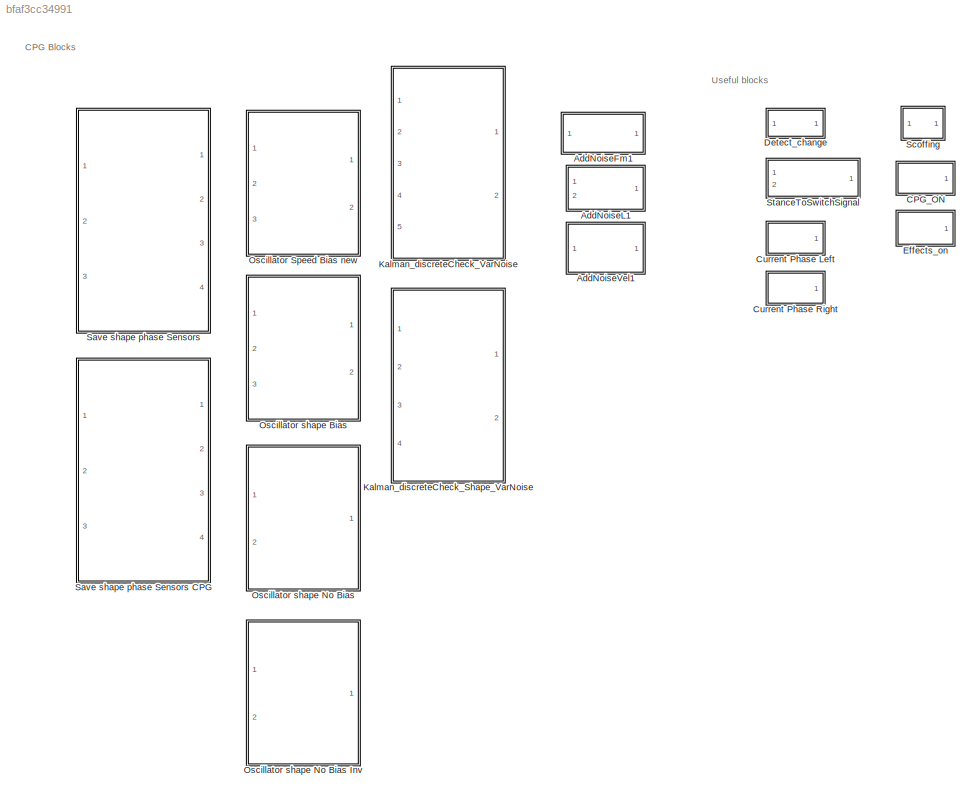
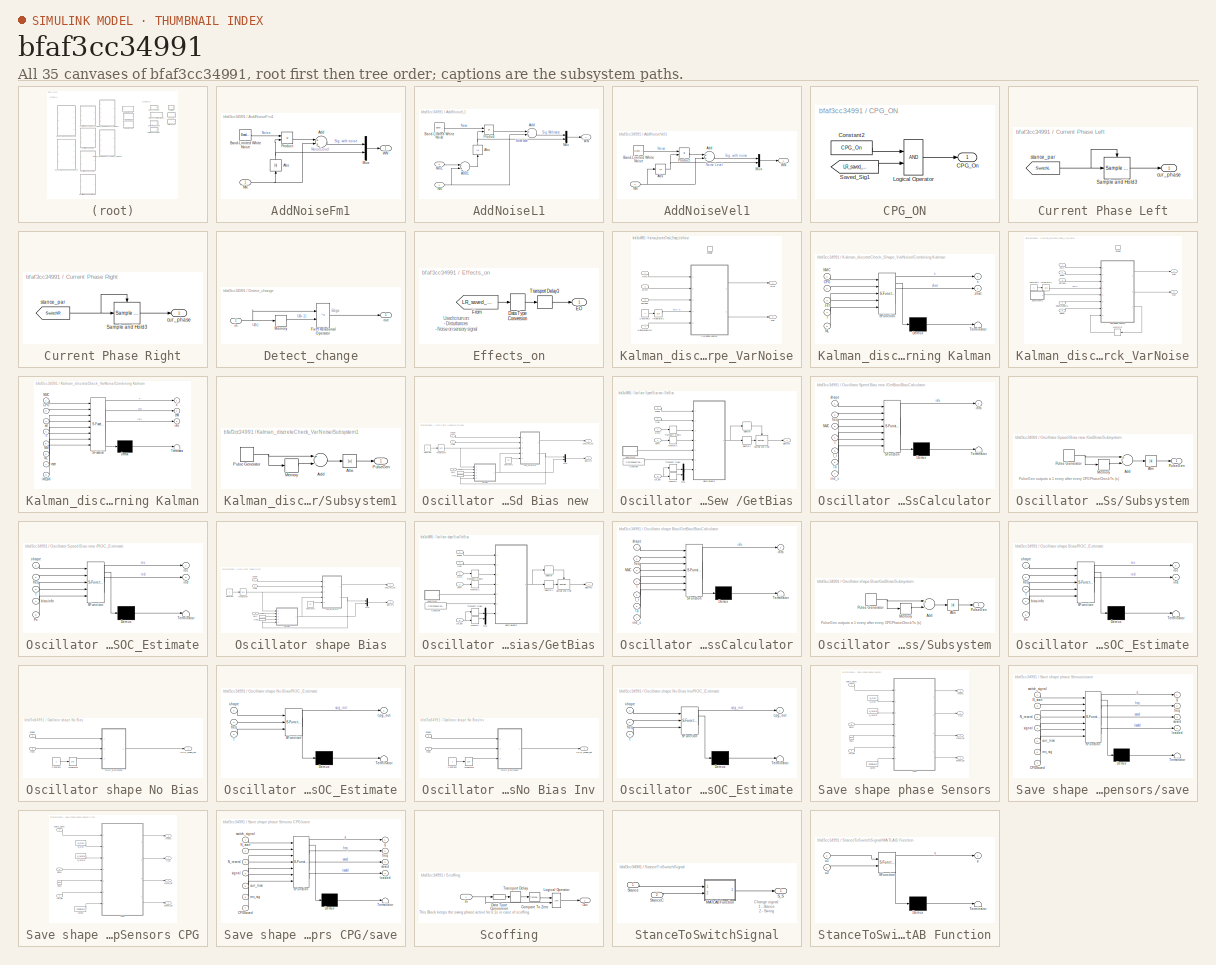
[diagram: thumbnail index - all 35 canvases of the model, root first then tree order]
MODEL slx_bfaf3cc34991
KIND library
CONFIG AbsTol = auto
CONFIG EnableMultiTasking = on
CONFIG FixedStep = auto
CONFIG MaxStep = auto
CONFIG MinStep = auto
CONFIG RelTol = 1e-3
CONFIG SampleTimeConstraint = Unconstrained
CONFIG Solver = VariableStepAuto
CONFIG SolverName = VariableStepAuto
CONFIG StartTime = 0.0
CONFIG StopTime = 10.0
BLOCK [SubSystem] AddNoiseFm1
  Ports = [1, 1]
  RequestExecContextInheritance = off
  Variant = off
BLOCK [Abs] AddNoiseFm1/Abs
  SaturateOnIntegerOverflow = off
BLOCK [Sum] AddNoiseFm1/Add
  InputSameDT = off
  OutDataTypeStr = Inherit: Inherit via internal rule
  Ports = [2, 1]
  SaturateOnIntegerOverflow = off
BLOCK [Reference] AddNoiseFm1/Band-Limited White Noise  REF=simulink/Sources/Band-Limited
White Noise
  Ports = [0, 1]
  SourceBlock = simulink/Sources/Band-Limited\nWhite Noise
  SourceType = Band-Limited White Noise.
BLOCK [Mux] AddNoiseFm1/Mux
  DisplayOption = bar
  Inputs = 2
  Ports = [2, 1]
BLOCK [Inport] AddNoiseFm1/NN
  IconDisplay = Port number
BLOCK [Product] AddNoiseFm1/Product
  InputSameDT = off
  OutDataTypeStr = Inherit: Inherit via internal rule
  Ports = [2, 1]
  RndMeth = Floor
  SaturateOnIntegerOverflow = off
BLOCK [Outport] AddNoiseFm1/WN 
  IconDisplay = Port number
BLOCK [SubSystem] AddNoiseL1
  Ports = [2, 1]
  RequestExecContextInheritance = off
  Variant = off
BLOCK [Abs] AddNoiseL1/Abs
  SaturateOnIntegerOverflow = off
BLOCK [Sum] AddNoiseL1/Add
  InputSameDT = off
  OutDataTypeStr = Inherit: Inherit via internal rule
  Ports = [2, 1]
  SaturateOnIntegerOverflow = off
BLOCK [Sum] AddNoiseL1/Add1
  InputSameDT = off
  Inputs = -+
  OutDataTypeStr = Inherit: Inherit via internal rule
  Ports = [2, 1]
  SaturateOnIntegerOverflow = off
BLOCK [Reference] AddNoiseL1/Band-Limited White Noise  REF=simulink/Sources/Band-Limited
White Noise
  Ports = [0, 1]
  SourceBlock = simulink/Sources/Band-Limited\nWhite Noise
  SourceType = Band-Limited White Noise.
BLOCK [Inport] AddNoiseL1/MinL
  IconDisplay = Port number
  Port = 2
BLOCK [Mux] AddNoiseL1/Mux
  DisplayOption = bar
  Inputs = 2
  Ports = [2, 1]
BLOCK [Inport] AddNoiseL1/NN
  IconDisplay = Port number
BLOCK [Product] AddNoiseL1/Product
  InputSameDT = off
  OutDataTypeStr = Inherit: Inherit via internal rule
  Ports = [2, 1]
  RndMeth = Floor
  SaturateOnIntegerOverflow = off
BLOCK [Outport] AddNoiseL1/WN 
  IconDisplay = Port number
BLOCK [SubSystem] AddNoiseVel1
  Ports = [1, 1]
  RequestExecContextInheritance = off
  Variant = off
BLOCK [Abs] AddNoiseVel1/Abs
  SaturateOnIntegerOverflow = off
BLOCK [Sum] AddNoiseVel1/Add
  InputSameDT = off
  OutDataTypeStr = Inherit: Inherit via internal rule
  Ports = [2, 1]
  SaturateOnIntegerOverflow = off
BLOCK [Reference] AddNoiseVel1/Band-Limited White Noise  REF=simulink/Sources/Band-Limited
White Noise
  Ports = [0, 1]
  SourceBlock = simulink/Sources/Band-Limited\nWhite Noise
  SourceType = Band-Limited White Noise.
BLOCK [Mux] AddNoiseVel1/Mux
  DisplayOption = bar
  Inputs = 2
  Ports = [2, 1]
BLOCK [Inport] AddNoiseVel1/NN
  IconDisplay = Port number
BLOCK [Product] AddNoiseVel1/Product
  InputSameDT = off
  OutDataTypeStr = Inherit: Inherit via internal rule
  Ports = [2, 1]
  RndMeth = Floor
  SaturateOnIntegerOverflow = off
BLOCK [Outport] AddNoiseVel1/WN 
  IconDisplay = Port number
BLOCK [SubSystem] CPG_ON
  Ports = [0, 1]
  RequestExecContextInheritance = off
  Variant = off
BLOCK [Outport] CPG_ON/CPG_On
  IconDisplay = Port number
BLOCK [Constant] CPG_ON/Constant2
  Value = CPG_On
BLOCK [Logic] CPG_ON/Logical Operator
  AllPortsSameDT = off
  OutDataTypeStr = boolean
  Ports = [2, 1]
BLOCK [From] CPG_ON/Saved_Sig1
  CloseFcn = tagdialog Close
  GotoTag = LR_saved_kept
  TagVisibility = global
BLOCK [SubSystem] Current Phase Left
  Ports = [0, 1]
  RequestExecContextInheritance = off
  Variant = off
BLOCK [Reference] Current Phase Left/Sample and Hold3  REF=dspsigops/Sample
and Hold
  Ports = [1, 1, 0, 1]
  SourceBlock = dspsigops/Sample\nand Hold
  SourceType = Sample and Hold
BLOCK [Outport] Current Phase Left/cur_phase
  IconDisplay = Port number
BLOCK [From] Current Phase Left/stance_par
  CloseFcn = tagdialog Close
  GotoTag = SwitchL
  TagVisibility = global
BLOCK [SubSystem] Current Phase Right
  Ports = [0, 1]
  RequestExecContextInheritance = off
  Variant = off
BLOCK [Reference] Current Phase Right/Sample and Hold3  REF=dspsigops/Sample
and Hold
  Ports = [1, 1, 0, 1]
  SourceBlock = dspsigops/Sample\nand Hold
  SourceType = Sample and Hold
BLOCK [Outport] Current Phase Right/cur_phase
  IconDisplay = Port number
BLOCK [From] Current Phase Right/stance_par
  CloseFcn = tagdialog Close
  GotoTag = SwitchR
  TagVisibility = global
BLOCK [SubSystem] Detect_change
  Ports = [1, 1]
  RequestExecContextInheritance = off
  Variant = off
BLOCK [RelationalOperator] Detect_change/FixPt Relational Operator
  InputSameDT = off
  Operator = ~=
  OutDataTypeStr = fixdt(0, 8)
  Ports = [2, 1]
  ZeroCross = off
BLOCK [Memory] Detect_change/Memory
BLOCK [Inport] Detect_change/in
  IconDisplay = Port number
BLOCK [Outport] Detect_change/out 
  IconDisplay = Port number
BLOCK [SubSystem] Effects_on
  Ports = [0, 1]
  RequestExecContextInheritance = off
  Variant = off
BLOCK [DataTypeConversion] Effects_on/Data Type Conversion
  RndMeth = Floor
  SaturateOnIntegerOverflow = off
BLOCK [Outport] Effects_on/EO
  IconDisplay = Port number
BLOCK [From] Effects_on/From
  GotoTag = LR_saved_kept
  TagVisibility = global
BLOCK [TransportDelay] Effects_on/Transport Delay3
  DelayTime = 0.1
  Ports = [1, 1]
BLOCK [SubSystem] Kalman_discreteCheck_Shape_VarNoise
  MinAlgLoopOccurrences = on
  Ports = [4, 2, 1]
  RequestExecContextInheritance = off
  Variant = off
BLOCK [SubSystem] Kalman_discreteCheck_Shape_VarNoise/Combining Kalman
  ErrorFcn = Stateflow.Translate.translate
  MinAlgLoopOccurrences = on
  PermitHierarchicalResolution = ExplicitOnly
  Ports = [5, 2]
  RequestExecContextInheritance = off
  SFBlockType = MATLAB Function
  SystemSampleTime = 1E-3
  Variant = off
BLOCK [Demux] Kalman_discreteCheck_Shape_VarNoise/Combining Kalman/ Demux 
  Outputs = 1
  Ports = [1, 1]
BLOCK [S-Function] Kalman_discreteCheck_Shape_VarNoise/Combining Kalman/ SFunction 
  EnableBusSupport = off
  FunctionName = sf_sfun
  PortCounts = [5 3]
  Ports = [5, 3]
  SFcnIsStateOwnerBlock = off
  SFunctionDeploymentMode = off
  Tag = Stateflow S-Function NMCCPG_Library 5
BLOCK [Terminator] Kalman_discreteCheck_Shape_VarNoise/Combining Kalman/ Terminator 
BLOCK [Inport] Kalman_discreteCheck_Shape_VarNoise/Combining Kalman/CPG
  IconDisplay = Port number
  Port = 2
BLOCK [Inport] Kalman_discreteCheck_Shape_VarNoise/Combining Kalman/NL
  IconDisplay = Port number
  Port = 5
BLOCK [Inport] Kalman_discreteCheck_Shape_VarNoise/Combining Kalman/NMC
  IconDisplay = Port number
BLOCK [Inport] Kalman_discreteCheck_Shape_VarNoise/Combining Kalman/set
  IconDisplay = Port number
  Port = 3
BLOCK [Inport] Kalman_discreteCheck_Shape_VarNoise/Combining Kalman/t
  IconDisplay = Port number
  Port = 4
BLOCK [Outport] Kalman_discreteCheck_Shape_VarNoise/Combining Kalman/x
  IconDisplay = Port number
BLOCK [Outport] Kalman_discreteCheck_Shape_VarNoise/Combining Kalman/zhat
  IconDisplay = Port number
  Port = 2
BLOCK [Constant] Kalman_discreteCheck_Shape_VarNoise/Constant2
BLOCK [EnablePort] Kalman_discreteCheck_Shape_VarNoise/Enable
  Ports = []
  StatesWhenEnabling = reset
BLOCK [Integrator] Kalman_discreteCheck_Shape_VarNoise/Integrator1
  Ports = [1, 1]
BLOCK [Inport] Kalman_discreteCheck_Shape_VarNoise/NMC
  IconDisplay = Port number
BLOCK [Inport] Kalman_discreteCheck_Shape_VarNoise/NoiseLevelNMC
  IconDisplay = Port number
  Port = 4
BLOCK [Inport] Kalman_discreteCheck_Shape_VarNoise/Settings
  IconDisplay = Port number
  Port = 3
BLOCK [Inport] Kalman_discreteCheck_Shape_VarNoise/dCPG
  IconDisplay = Port number
  Port = 2
BLOCK [Outport] Kalman_discreteCheck_Shape_VarNoise/xHat
  IconDisplay = Port number
BLOCK [Outport] Kalman_discreteCheck_Shape_VarNoise/zhat
  IconDisplay = Port number
  Port = 2
BLOCK [SubSystem] Kalman_discreteCheck_VarNoise
  MinAlgLoopOccurrences = on
  Ports = [5, 2, 1]
  RequestExecContextInheritance = off
  Variant = off
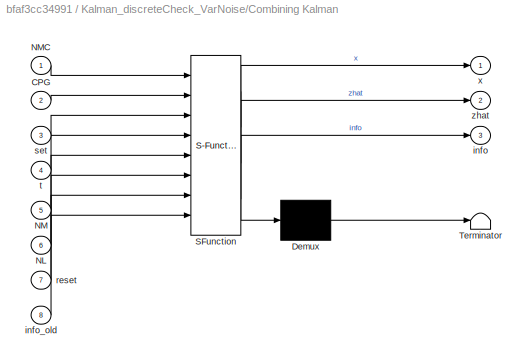
BLOCK [SubSystem] Kalman_discreteCheck_VarNoise/Combining Kalman
  ErrorFcn = Stateflow.Translate.translate
  MinAlgLoopOccurrences = on
  PermitHierarchicalResolution = ExplicitOnly
  Ports = [8, 3]
  RequestExecContextInheritance = off
  SFBlockType = MATLAB Function
  SystemSampleTime = 1E-3
  TreatAsAtomicUnit = on
  Variant = off
BLOCK [Demux] Kalman_discreteCheck_VarNoise/Combining Kalman/ Demux 
  Outputs = 1
  Ports = [1, 1]
BLOCK [S-Function] Kalman_discreteCheck_VarNoise/Combining Kalman/ SFunction 
  EnableBusSupport = off
  FunctionName = sf_sfun
  PortCounts = [8 4]
  Ports = [8, 4]
  SFcnIsStateOwnerBlock = off
  SFunctionDeploymentMode = off
  Tag = Stateflow S-Function NMCCPG_Library 21
BLOCK [Terminator] Kalman_discreteCheck_VarNoise/Combining Kalman/ Terminator 
BLOCK [Inport] Kalman_discreteCheck_VarNoise/Combining Kalman/CPG
  IconDisplay = Port number
  Port = 2
BLOCK [Inport] Kalman_discreteCheck_VarNoise/Combining Kalman/NL
  IconDisplay = Port number
  Port = 6
BLOCK [Inport] Kalman_discreteCheck_VarNoise/Combining Kalman/NM
  IconDisplay = Port number
  Port = 5
BLOCK [Inport] Kalman_discreteCheck_VarNoise/Combining Kalman/NMC
  IconDisplay = Port number
BLOCK [Outport] Kalman_discreteCheck_VarNoise/Combining Kalman/info
  IconDisplay = Port number
  Port = 3
BLOCK [Inport] Kalman_discreteCheck_VarNoise/Combining Kalman/info_old
  IconDisplay = Port number
  Port = 8
BLOCK [Inport] Kalman_discreteCheck_VarNoise/Combining Kalman/reset
  IconDisplay = Port number
  Port = 7
BLOCK [Inport] Kalman_discreteCheck_VarNoise/Combining Kalman/set
  IconDisplay = Port number
  Port = 3
BLOCK [Inport] Kalman_discreteCheck_VarNoise/Combining Kalman/t
  IconDisplay = Port number
  Port = 4
BLOCK [Outport] Kalman_discreteCheck_VarNoise/Combining Kalman/x
  IconDisplay = Port number
BLOCK [Outport] Kalman_discreteCheck_VarNoise/Combining Kalman/zhat
  IconDisplay = Port number
  Port = 2
BLOCK [Constant] Kalman_discreteCheck_VarNoise/Constant2
BLOCK [EnablePort] Kalman_discreteCheck_VarNoise/Enable
  Ports = []
  StatesWhenEnabling = reset
BLOCK [Integrator] Kalman_discreteCheck_VarNoise/Integrator1
  Ports = [1, 1]
BLOCK [Memory] Kalman_discreteCheck_VarNoise/Memory5
  X0 = zeros(59,1)
BLOCK [Inport] Kalman_discreteCheck_VarNoise/NMC
  IconDisplay = Port number
BLOCK [Inport] Kalman_discreteCheck_VarNoise/NoiseLevelNMC
  IconDisplay = Port number
  Port = 4
BLOCK [Inport] Kalman_discreteCheck_VarNoise/Reset
  IconDisplay = Port number
  Port = 5
BLOCK [Inport] Kalman_discreteCheck_VarNoise/Settings
  IconDisplay = Port number
  Port = 3
BLOCK [SubSystem] Kalman_discreteCheck_VarNoise/Subsystem1
  Ports = [0, 1]
  RequestExecContextInheritance = off
  Variant = off
BLOCK [Abs] Kalman_discreteCheck_VarNoise/Subsystem1/Abs
  SaturateOnIntegerOverflow = off
BLOCK [Sum] Kalman_discreteCheck_VarNoise/Subsystem1/Add
  InputSameDT = off
  Inputs = +-
  OutDataTypeStr = Inherit: Inherit via internal rule
  Ports = [2, 1]
  SaturateOnIntegerOverflow = off
BLOCK [Memory] Kalman_discreteCheck_VarNoise/Subsystem1/Memory
BLOCK [DiscretePulseGenerator] Kalman_discreteCheck_VarNoise/Subsystem1/Pulse Generator
  Period = (1/NoiseFs)*2
  Ports = [0, 1]
  PulseType = Time based
  PulseWidth = 50
  SampleTime = -1
BLOCK [Outport] Kalman_discreteCheck_VarNoise/Subsystem1/PulseGen
  IconDisplay = Port number
BLOCK [Inport] Kalman_discreteCheck_VarNoise/dCPG
  IconDisplay = Port number
  Port = 2
BLOCK [Outport] Kalman_discreteCheck_VarNoise/xHat
  IconDisplay = Port number
BLOCK [Outport] Kalman_discreteCheck_VarNoise/zhat
  IconDisplay = Port number
  Port = 2
BLOCK [SubSystem] Oscillator Speed Bias new 
  Ports = [3, 2]
  RequestExecContextInheritance = off
  Variant = off
BLOCK [Outport] Oscillator Speed Bias new /BiasInfo
  IconDisplay = Port number
  Port = 2
  SignalType = real
  VarSizeSig = No
BLOCK [Outport] Oscillator Speed Bias new /CPG_roc_est
  IconDisplay = Port number
  SignalType = real
  VarSizeSig = No
BLOCK [Constant] Oscillator Speed Bias new /Constant
BLOCK [Constant] Oscillator Speed Bias new /Constant1
  Value = Pc
BLOCK [SubSystem] Oscillator Speed Bias new /GetBias
  Ports = [5, 1]
  RequestExecContextInheritance = off
  Variant = off
BLOCK [SubSystem] Oscillator Speed Bias new /GetBias/BiasCalculator
  ErrorFcn = Stateflow.Translate.translate
  PermitHierarchicalResolution = ExplicitOnly
  Ports = [7, 1]
  RequestExecContextInheritance = off
  SFBlockType = MATLAB Function
  TreatAsAtomicUnit = on
  Variant = off
BLOCK [Demux] Oscillator Speed Bias new /GetBias/BiasCalculator/ Demux 
  Outputs = 1
  Ports = [1, 1]
BLOCK [S-Function] Oscillator Speed Bias new /GetBias/BiasCalculator/ SFunction 
  EnableBusSupport = off
  FunctionName = sf_sfun
  PortCounts = [7 2]
  Ports = [7, 2]
  SFcnIsStateOwnerBlock = off
  SFunctionDeploymentMode = off
  Tag = Stateflow S-Function NMCCPG_Library 1
BLOCK [Terminator] Oscillator Speed Bias new /GetBias/BiasCalculator/ Terminator 
BLOCK [Inport] Oscillator Speed Bias new /GetBias/BiasCalculator/NMC
  IconDisplay = Port number
  Port = 3
BLOCK [Inport] Oscillator Speed Bias new /GetBias/BiasCalculator/Ts
  IconDisplay = Port number
  Port = 6
BLOCK [Inport] Oscillator Speed Bias new /GetBias/BiasCalculator/freq
  IconDisplay = Port number
  Port = 2
BLOCK [Inport] Oscillator Speed Bias new /GetBias/BiasCalculator/ind_c
  IconDisplay = Port number
  Port = 7
BLOCK [Outport] Oscillator Speed Bias new /GetBias/BiasCalculator/info
  IconDisplay = Port number
BLOCK [Inport] Oscillator Speed Bias new /GetBias/BiasCalculator/shape
  IconDisplay = Port number
BLOCK [Inport] Oscillator Speed Bias new /GetBias/BiasCalculator/t
  IconDisplay = Port number
  Port = 4
BLOCK [Inport] Oscillator Speed Bias new /GetBias/BiasCalculator/t_r
  IconDisplay = Port number
  Port = 5
BLOCK [Outport] Oscillator Speed Bias new /GetBias/BiasInfo
  IconDisplay = Port number
BLOCK [Constant] Oscillator Speed Bias new /GetBias/Constant
  Value = CPGPhaseCheckTs
BLOCK [Memory] Oscillator Speed Bias new /GetBias/Memory
BLOCK [Memory] Oscillator Speed Bias new /GetBias/Memory1
BLOCK [Mux] Oscillator Speed Bias new /GetBias/Mux
  DisplayOption = bar
  Inputs = 2
  Ports = [2, 1]
BLOCK [Inport] Oscillator Speed Bias new /GetBias/NMC
  IconDisplay = Port number
  Port = 2
BLOCK [Reference] Oscillator Speed Bias new /GetBias/Sample and Hold  REF=dspsigops/Sample
and Hold
  Ports = [1, 1, 0, 1]
  SourceBlock = dspsigops/Sample\nand Hold
  SourceType = Sample and Hold
BLOCK [Selector] Oscillator Speed Bias new /GetBias/Selector
  IndexOptions = Index vector (dialog)
  Indices = [1]
  InputPortWidth = 4
  OutputSizes = 1
  Ports = [1, 1]
BLOCK [Selector] Oscillator Speed Bias new /GetBias/Selector1
  IndexOptions = Index vector (dialog)
  Indices = [2:4]
  InputPortWidth = 4
  OutputSizes = 1
  Ports = [1, 1]
BLOCK [SubSystem] Oscillator Speed Bias new /GetBias/Subsystem
  Ports = [0, 1]
  RequestExecContextInheritance = off
  Variant = off
BLOCK [Abs] Oscillator Speed Bias new /GetBias/Subsystem/Abs
  SaturateOnIntegerOverflow = off
BLOCK [Sum] Oscillator Speed Bias new /GetBias/Subsystem/Add
  InputSameDT = off
  Inputs = +-
  OutDataTypeStr = Inherit: Inherit via internal rule
  Ports = [2, 1]
  SaturateOnIntegerOverflow = off
BLOCK [Memory] Oscillator Speed Bias new /GetBias/Subsystem/Memory
BLOCK [DiscretePulseGenerator] Oscillator Speed Bias new /GetBias/Subsystem/Pulse Generator
  Period = CPGPhaseCheckTs*2
  Ports = [0, 1]
  PulseType = Time based
  PulseWidth = 50
  SampleTime = -1
BLOCK [Outport] Oscillator Speed Bias new /GetBias/Subsystem/PulseGen
  IconDisplay = Port number
BLOCK [TransportDelay] Oscillator Speed Bias new /GetBias/Transport Delay
  DelayTime = CPGPhaseCheckTs*0.5
  Ports = [1, 1]
BLOCK [TransportDelay] Oscillator Speed Bias new /GetBias/Transport Delay1
  DelayTime = CPGPhaseCheckTs*0.5
  InitialOutput = zeros(19,1)
  Ports = [1, 1]
BLOCK [Inport] Oscillator Speed Bias new /GetBias/cur_ind
  IconDisplay = Port number
  Port = 5
BLOCK [Inport] Oscillator Speed Bias new /GetBias/freq
  IconDisplay = Port number
  Port = 4
BLOCK [Inport] Oscillator Speed Bias new /GetBias/shape
  IconDisplay = Port number
  Port = 3
BLOCK [Inport] Oscillator Speed Bias new /GetBias/time
  IconDisplay = Port number
BLOCK [Integrator] Oscillator Speed Bias new /Integrator
  Ports = [1, 1]
BLOCK [Mux] Oscillator Speed Bias new /Mux
  DisplayOption = bar
  Inputs = 2
  Ports = [2, 1]
BLOCK [Inport] Oscillator Speed Bias new /NMC
  IconDisplay = Port number
  Port = 3
BLOCK [SubSystem] Oscillator Speed Bias new /ROC_Estimate
  ErrorFcn = Stateflow.Translate.translate
  PermitHierarchicalResolution = ExplicitOnly
  Ports = [5, 2]
  RequestExecContextInheritance = off
  SFBlockType = MATLAB Function
  TreatAsAtomicUnit = on
  Variant = off
BLOCK [Demux] Oscillator Speed Bias new /ROC_Estimate/ Demux 
  Outputs = 1
  Ports = [1, 1]
BLOCK [S-Function] Oscillator Speed Bias new /ROC_Estimate/ SFunction 
  EnableBusSupport = off
  FunctionName = sf_sfun
  PortCounts = [5 3]
  Ports = [5, 3]
  SFcnIsStateOwnerBlock = off
  SFunctionDeploymentMode = off
  Tag = Stateflow S-Function NMCCPG_Library 2
BLOCK [Terminator] Oscillator Speed Bias new /ROC_Estimate/ Terminator 
BLOCK [Inport] Oscillator Speed Bias new /ROC_Estimate/Pc
  IconDisplay = Port number
  Port = 5
BLOCK [Inport] Oscillator Speed Bias new /ROC_Estimate/biasinfo
  IconDisplay = Port number
  Port = 4
BLOCK [Inport] Oscillator Speed Bias new /ROC_Estimate/freq
  IconDisplay = Port number
  Port = 2
BLOCK [Outport] Oscillator Speed Bias new /ROC_Estimate/ind
  IconDisplay = Port number
  Port = 2
BLOCK [Outport] Oscillator Speed Bias new /ROC_Estimate/roc
  IconDisplay = Port number
BLOCK [Inport] Oscillator Speed Bias new /ROC_Estimate/shape
  IconDisplay = Port number
BLOCK [Inport] Oscillator Speed Bias new /ROC_Estimate/t
  IconDisplay = Port number
  Port = 3
BLOCK [Inport] Oscillator Speed Bias new /freq
  IconDisplay = Port number
  Port = 2
BLOCK [InportShadow] Oscillator Speed Bias new /freq1
  IconDisplay = Port number
  Port = 2
BLOCK [Inport] Oscillator Speed Bias new /shape
  IconDisplay = Port number
BLOCK [InportShadow] Oscillator Speed Bias new /shape1
  IconDisplay = Port number
BLOCK [SubSystem] Oscillator shape Bias
  Ports = [3, 2]
  RequestExecContextInheritance = off
  Variant = off
BLOCK [Outport] Oscillator shape Bias/BiasInfo
  IconDisplay = Port number
  Port = 2
  SignalType = real
  VarSizeSig = No
BLOCK [Outport] Oscillator shape Bias/CPG_roc_est
  IconDisplay = Port number
  SignalType = real
  VarSizeSig = No
BLOCK [Constant] Oscillator shape Bias/Constant
BLOCK [Constant] Oscillator shape Bias/Constant1
  Value = Pc
BLOCK [SubSystem] Oscillator shape Bias/GetBias
  Ports = [5, 1]
  RequestExecContextInheritance = off
  Variant = off
BLOCK [SubSystem] Oscillator shape Bias/GetBias/BiasCalculator
  ErrorFcn = Stateflow.Translate.translate
  PermitHierarchicalResolution = ExplicitOnly
  Ports = [7, 1]
  RequestExecContextInheritance = off
  SFBlockType = MATLAB Function
  TreatAsAtomicUnit = on
  Variant = off
BLOCK [Demux] Oscillator shape Bias/GetBias/BiasCalculator/ Demux 
  Outputs = 1
  Ports = [1, 1]
BLOCK [S-Function] Oscillator shape Bias/GetBias/BiasCalculator/ SFunction 
  EnableBusSupport = off
  FunctionName = sf_sfun
  PortCounts = [7 2]
  Ports = [7, 2]
  SFcnIsStateOwnerBlock = off
  SFunctionDeploymentMode = off
  Tag = Stateflow S-Function NMCCPG_Library 3
BLOCK [Terminator] Oscillator shape Bias/GetBias/BiasCalculator/ Terminator 
BLOCK [Inport] Oscillator shape Bias/GetBias/BiasCalculator/NMC
  IconDisplay = Port number
  Port = 3
BLOCK [Inport] Oscillator shape Bias/GetBias/BiasCalculator/Ts
  IconDisplay = Port number
  Port = 6
BLOCK [Inport] Oscillator shape Bias/GetBias/BiasCalculator/freq
  IconDisplay = Port number
  Port = 2
BLOCK [Inport] Oscillator shape Bias/GetBias/BiasCalculator/ind_c
  IconDisplay = Port number
  Port = 7
BLOCK [Outport] Oscillator shape Bias/GetBias/BiasCalculator/info
  IconDisplay = Port number
BLOCK [Inport] Oscillator shape Bias/GetBias/BiasCalculator/shape
  IconDisplay = Port number
BLOCK [Inport] Oscillator shape Bias/GetBias/BiasCalculator/t
  IconDisplay = Port number
  Port = 4
BLOCK [Inport] Oscillator shape Bias/GetBias/BiasCalculator/t_r
  IconDisplay = Port number
  Port = 5
BLOCK [Outport] Oscillator shape Bias/GetBias/BiasInfo
  IconDisplay = Port number
BLOCK [Constant] Oscillator shape Bias/GetBias/Constant
  Value = CPGPhaseCheckTs
BLOCK [Memory] Oscillator shape Bias/GetBias/Memory
BLOCK [Memory] Oscillator shape Bias/GetBias/Memory1
BLOCK [Mux] Oscillator shape Bias/GetBias/Mux
  DisplayOption = bar
  Inputs = 2
  Ports = [2, 1]
BLOCK [Inport] Oscillator shape Bias/GetBias/NMC
  IconDisplay = Port number
  Port = 2
BLOCK [Reference] Oscillator shape Bias/GetBias/Sample and Hold  REF=dspsigops/Sample
and Hold
  Ports = [1, 1, 0, 1]
  SourceBlock = dspsigops/Sample\nand Hold
  SourceType = Sample and Hold
BLOCK [Selector] Oscillator shape Bias/GetBias/Selector
  IndexOptions = Index vector (dialog)
  Indices = [1]
  InputPortWidth = 4
  OutputSizes = 1
  Ports = [1, 1]
BLOCK [Selector] Oscillator shape Bias/GetBias/Selector1
  IndexOptions = Index vector (dialog)
  Indices = [2:4]
  InputPortWidth = 4
  OutputSizes = 1
  Ports = [1, 1]
BLOCK [SubSystem] Oscillator shape Bias/GetBias/Subsystem
  Ports = [0, 1]
  RequestExecContextInheritance = off
  Variant = off
BLOCK [Abs] Oscillator shape Bias/GetBias/Subsystem/Abs
  SaturateOnIntegerOverflow = off
BLOCK [Sum] Oscillator shape Bias/GetBias/Subsystem/Add
  InputSameDT = off
  Inputs = +-
  OutDataTypeStr = Inherit: Inherit via internal rule
  Ports = [2, 1]
  SaturateOnIntegerOverflow = off
BLOCK [Memory] Oscillator shape Bias/GetBias/Subsystem/Memory
BLOCK [DiscretePulseGenerator] Oscillator shape Bias/GetBias/Subsystem/Pulse Generator
  Period = CPGPhaseCheckTs*2
  Ports = [0, 1]
  PulseType = Time based
  PulseWidth = 50
  SampleTime = -1
BLOCK [Outport] Oscillator shape Bias/GetBias/Subsystem/PulseGen
  IconDisplay = Port number
BLOCK [TransportDelay] Oscillator shape Bias/GetBias/Transport Delay
  DelayTime = CPGPhaseCheckTs*0.5
  Ports = [1, 1]
BLOCK [TransportDelay] Oscillator shape Bias/GetBias/Transport Delay1
  DelayTime = CPGPhaseCheckTs*0.5
  InitialOutput = zeros(19,1)
  Ports = [1, 1]
BLOCK [Inport] Oscillator shape Bias/GetBias/cur_ind
  IconDisplay = Port number
  Port = 5
BLOCK [Inport] Oscillator shape Bias/GetBias/freq
  IconDisplay = Port number
  Port = 4
BLOCK [Inport] Oscillator shape Bias/GetBias/shape
  IconDisplay = Port number
  Port = 3
BLOCK [Inport] Oscillator shape Bias/GetBias/time
  IconDisplay = Port number
BLOCK [Integrator] Oscillator shape Bias/Integrator
  Ports = [1, 1]
BLOCK [Mux] Oscillator shape Bias/Mux
  DisplayOption = bar
  Inputs = 2
  Ports = [2, 1]
BLOCK [Inport] Oscillator shape Bias/NMC
  IconDisplay = Port number
  Port = 3
BLOCK [SubSystem] Oscillator shape Bias/ROC_Estimate
  ErrorFcn = Stateflow.Translate.translate
  PermitHierarchicalResolution = ExplicitOnly
  Ports = [5, 2]
  RequestExecContextInheritance = off
  SFBlockType = MATLAB Function
  TreatAsAtomicUnit = on
  Variant = off
BLOCK [Demux] Oscillator shape Bias/ROC_Estimate/ Demux 
  Outputs = 1
  Ports = [1, 1]
BLOCK [S-Function] Oscillator shape Bias/ROC_Estimate/ SFunction 
  EnableBusSupport = off
  FunctionName = sf_sfun
  PortCounts = [5 3]
  Ports = [5, 3]
  SFcnIsStateOwnerBlock = off
  SFunctionDeploymentMode = off
  Tag = Stateflow S-Function NMCCPG_Library 4
BLOCK [Terminator] Oscillator shape Bias/ROC_Estimate/ Terminator 
BLOCK [Inport] Oscillator shape Bias/ROC_Estimate/Pc
  IconDisplay = Port number
  Port = 5
BLOCK [Inport] Oscillator shape Bias/ROC_Estimate/biasinfo
  IconDisplay = Port number
  Port = 4
BLOCK [Inport] Oscillator shape Bias/ROC_Estimate/freq
  IconDisplay = Port number
  Port = 2
BLOCK [Outport] Oscillator shape Bias/ROC_Estimate/ind
  IconDisplay = Port number
  Port = 2
BLOCK [Outport] Oscillator shape Bias/ROC_Estimate/roc
  IconDisplay = Port number
BLOCK [Inport] Oscillator shape Bias/ROC_Estimate/shape
  IconDisplay = Port number
BLOCK [Inport] Oscillator shape Bias/ROC_Estimate/t
  IconDisplay = Port number
  Port = 3
BLOCK [Inport] Oscillator shape Bias/freq
  IconDisplay = Port number
  Port = 2
BLOCK [InportShadow] Oscillator shape Bias/freq1
  IconDisplay = Port number
  Port = 2
BLOCK [Inport] Oscillator shape Bias/shape
  IconDisplay = Port number
BLOCK [InportShadow] Oscillator shape Bias/shape1
  IconDisplay = Port number
BLOCK [SubSystem] Oscillator shape No Bias
  Ports = [2, 1]
  RequestExecContextInheritance = off
  Variant = off
BLOCK [SubSystem] Oscillator shape No Bias Inv
  Ports = [2, 1]
  RequestExecContextInheritance = off
  Variant = off
BLOCK [Outport] Oscillator shape No Bias Inv/CPG_shape_est
  IconDisplay = Port number
  SignalType = real
  VarSizeSig = No
BLOCK [Constant] Oscillator shape No Bias Inv/Constant
BLOCK [Integrator] Oscillator shape No Bias Inv/Integrator
  Ports = [1, 1]
BLOCK [SubSystem] Oscillator shape No Bias Inv/ROC_Estimate
  ErrorFcn = Stateflow.Translate.translate
  MinAlgLoopOccurrences = on
  PermitHierarchicalResolution = ExplicitOnly
  Ports = [3, 1]
  RequestExecContextInheritance = off
  SFBlockType = MATLAB Function
  TreatAsAtomicUnit = on
  TreatAsGroupedWhenPropagatingVariantConditions = off
  Variant = off
BLOCK [Demux] Oscillator shape No Bias Inv/ROC_Estimate/ Demux 
  Outputs = 1
  Ports = [1, 1]
BLOCK [S-Function] Oscillator shape No Bias Inv/ROC_Estimate/ SFunction 
  EnableBusSupport = off
  FunctionName = sf_sfun
  PortCounts = [3 2]
  Ports = [3, 2]
  SFcnIsStateOwnerBlock = off
  SFunctionDeploymentMode = off
  Tag = Stateflow S-Function NMCCPG_Library 6
BLOCK [Terminator] Oscillator shape No Bias Inv/ROC_Estimate/ Terminator 
BLOCK [Outport] Oscillator shape No Bias Inv/ROC_Estimate/cpg_out
  IconDisplay = Port number
BLOCK [Inport] Oscillator shape No Bias Inv/ROC_Estimate/freq
  IconDisplay = Port number
  Port = 2
BLOCK [Inport] Oscillator shape No Bias Inv/ROC_Estimate/shape
  IconDisplay = Port number
BLOCK [Inport] Oscillator shape No Bias Inv/ROC_Estimate/t
  IconDisplay = Port number
  Port = 3
BLOCK [Inport] Oscillator shape No Bias Inv/freq
  IconDisplay = Port number
  Port = 2
BLOCK [Inport] Oscillator shape No Bias Inv/shape
  IconDisplay = Port number
BLOCK [Outport] Oscillator shape No Bias/CPG_shape_est
  IconDisplay = Port number
  SignalType = real
  VarSizeSig = No
BLOCK [Constant] Oscillator shape No Bias/Constant
BLOCK [Integrator] Oscillator shape No Bias/Integrator
  Ports = [1, 1]
BLOCK [SubSystem] Oscillator shape No Bias/ROC_Estimate
  ErrorFcn = Stateflow.Translate.translate
  MinAlgLoopOccurrences = on
  PermitHierarchicalResolution = ExplicitOnly
  Ports = [3, 1]
  RequestExecContextInheritance = off
  SFBlockType = MATLAB Function
  SystemSampleTime = 1e-2
  TreatAsAtomicUnit = on
  TreatAsGroupedWhenPropagatingVariantConditions = off
  Variant = off
BLOCK [Demux] Oscillator shape No Bias/ROC_Estimate/ Demux 
  Outputs = 1
  Ports = [1, 1]
BLOCK [S-Function] Oscillator shape No Bias/ROC_Estimate/ SFunction 
  EnableBusSupport = off
  FunctionName = sf_sfun
  PortCounts = [3 2]
  Ports = [3, 2]
  SFcnIsStateOwnerBlock = off
  SFunctionDeploymentMode = off
  Tag = Stateflow S-Function NMCCPG_Library 15
BLOCK [Terminator] Oscillator shape No Bias/ROC_Estimate/ Terminator 
BLOCK [Outport] Oscillator shape No Bias/ROC_Estimate/cpg_out
  IconDisplay = Port number
BLOCK [Inport] Oscillator shape No Bias/ROC_Estimate/freq
  IconDisplay = Port number
  Port = 2
BLOCK [Inport] Oscillator shape No Bias/ROC_Estimate/shape
  IconDisplay = Port number
BLOCK [Inport] Oscillator shape No Bias/ROC_Estimate/t
  IconDisplay = Port number
  Port = 3
BLOCK [Inport] Oscillator shape No Bias/freq
  IconDisplay = Port number
  Port = 2
BLOCK [Inport] Oscillator shape No Bias/shape
  IconDisplay = Port number
BLOCK [SubSystem] Save shape phase Sensors
  Ports = [3, 4]
  RequestExecContextInheritance = off
  Variant = off
BLOCK [SubSystem] Save shape phase Sensors CPG
  Ports = [3, 4]
  RequestExecContextInheritance = off
  Variant = off
BLOCK [Clock] Save shape phase Sensors CPG/Clock
  Decimation = 1E6
BLOCK [Constant] Save shape phase Sensors CPG/N_record
  Value = N_record
BLOCK [Constant] Save shape phase Sensors CPG/N_start
  Value = N_start
BLOCK [Constant] Save shape phase Sensors CPG/Saved
  Value = CPGSaved
BLOCK [Outport] Save shape phase Sensors CPG/freq
  IconDisplay = Port number
  Port = 4
BLOCK [Outport] Save shape phase Sensors CPG/loaded_sig
  IconDisplay = Port number
  Port = 2
BLOCK [Inport] Save shape phase Sensors CPG/rec_sig
  IconDisplay = Port number
  Port = 3
BLOCK [SubSystem] Save shape phase Sensors CPG/save
  ErrorFcn = Stateflow.Translate.translate
  PermitHierarchicalResolution = ExplicitOnly
  Ports = [7, 4]
  RequestExecContextInheritance = off
  SFBlockType = Chart
  TreatAsAtomicUnit = on
  Variant = off
BLOCK [Demux] Save shape phase Sensors CPG/save/ Demux 
  Outputs = 1
  Ports = [1, 1]
BLOCK [S-Function] Save shape phase Sensors CPG/save/ SFunction 
  EnableBusSupport = off
  FunctionName = sf_sfun
  PortCounts = [7 5]
  Ports = [7, 5]
  SFcnIsStateOwnerBlock = off
  SFunctionDeploymentMode = off
  Tag = Stateflow S-Function NMCCPG_Library 9
BLOCK [Terminator] Save shape phase Sensors CPG/save/ Terminator 
BLOCK [Inport] Save shape phase Sensors CPG/save/CPGSaved
  IconDisplay = Port number
  Port = 7
BLOCK [Inport] Save shape phase Sensors CPG/save/N_record
  IconDisplay = Port number
  Port = 3
BLOCK [Inport] Save shape phase Sensors CPG/save/N_start
  IconDisplay = Port number
  Port = 2
BLOCK [Inport] Save shape phase Sensors CPG/save/curr_time
  IconDisplay = Port number
  Port = 5
BLOCK [Outport] Save shape phase Sensors CPG/save/freq
  IconDisplay = Port number
  Port = 2
BLOCK [Outport] Save shape phase Sensors CPG/save/g
  IconDisplay = Port number
BLOCK [Outport] Save shape phase Sensors CPG/save/loaded
  IconDisplay = Port number
  Port = 4
BLOCK [Inport] Save shape phase Sensors CPG/save/rec_sig
  IconDisplay = Port number
  Port = 6
BLOCK [Outport] Save shape phase Sensors CPG/save/saved
  IconDisplay = Port number
  Port = 3
BLOCK [Inport] Save shape phase Sensors CPG/save/signal
  IconDisplay = Port number
  Port = 4
BLOCK [Inport] Save shape phase Sensors CPG/save/switch_signal
  IconDisplay = Port number
BLOCK [Outport] Save shape phase Sensors CPG/saved_sig
  IconDisplay = Port number
BLOCK [Inport] Save shape phase Sensors CPG/signal
  IconDisplay = Port number
  Port = 2
BLOCK [Inport] Save shape phase Sensors CPG/switch_signal
  IconDisplay = Port number
BLOCK [Outport] Save shape phase Sensors CPG/yteach
  IconDisplay = Port number
  Port = 3
BLOCK [Clock] Save shape phase Sensors/Clock
  Decimation = 1E6
BLOCK [Constant] Save shape phase Sensors/N_record
  Value = N_record
BLOCK [Constant] Save shape phase Sensors/N_start
  Value = N_start
BLOCK [Constant] Save shape phase Sensors/Saved
  Value = CPGSaved
BLOCK [Outport] Save shape phase Sensors/freq
  IconDisplay = Port number
  Port = 4
BLOCK [Outport] Save shape phase Sensors/loaded_sig
  IconDisplay = Port number
  Port = 2
BLOCK [Inport] Save shape phase Sensors/rec_sig
  IconDisplay = Port number
  Port = 3
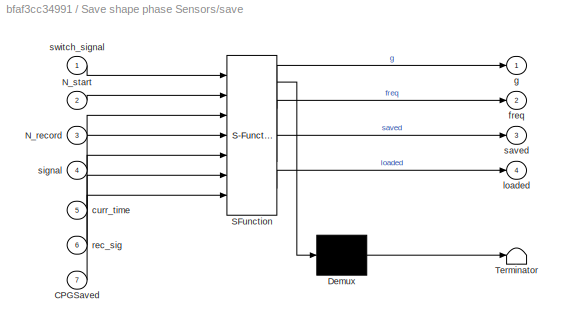
BLOCK [SubSystem] Save shape phase Sensors/save
  ErrorFcn = Stateflow.Translate.translate
  PermitHierarchicalResolution = ExplicitOnly
  Ports = [7, 4]
  RequestExecContextInheritance = off
  SFBlockType = Chart
  TreatAsAtomicUnit = on
  Variant = off
BLOCK [Demux] Save shape phase Sensors/save/ Demux 
  Outputs = 1
  Ports = [1, 1]
BLOCK [S-Function] Save shape phase Sensors/save/ SFunction 
  EnableBusSupport = off
  FunctionName = sf_sfun
  PortCounts = [7 5]
  Ports = [7, 5]
  SFcnIsStateOwnerBlock = off
  SFunctionDeploymentMode = off
  Tag = Stateflow S-Function NMCCPG_Library 8
BLOCK [Terminator] Save shape phase Sensors/save/ Terminator 
BLOCK [Inport] Save shape phase Sensors/save/CPGSaved
  IconDisplay = Port number
  Port = 7
BLOCK [Inport] Save shape phase Sensors/save/N_record
  IconDisplay = Port number
  Port = 3
BLOCK [Inport] Save shape phase Sensors/save/N_start
  IconDisplay = Port number
  Port = 2
BLOCK [Inport] Save shape phase Sensors/save/curr_time
  IconDisplay = Port number
  Port = 5
BLOCK [Outport] Save shape phase Sensors/save/freq
  IconDisplay = Port number
  Port = 2
BLOCK [Outport] Save shape phase Sensors/save/g
  IconDisplay = Port number
BLOCK [Outport] Save shape phase Sensors/save/loaded
  IconDisplay = Port number
  Port = 4
BLOCK [Inport] Save shape phase Sensors/save/rec_sig
  IconDisplay = Port number
  Port = 6
BLOCK [Outport] Save shape phase Sensors/save/saved
  IconDisplay = Port number
  Port = 3
BLOCK [Inport] Save shape phase Sensors/save/signal
  IconDisplay = Port number
  Port = 4
BLOCK [Inport] Save shape phase Sensors/save/switch_signal
  IconDisplay = Port number
BLOCK [Outport] Save shape phase Sensors/saved_sig
  IconDisplay = Port number
BLOCK [Inport] Save shape phase Sensors/signal
  IconDisplay = Port number
  Port = 2
BLOCK [Inport] Save shape phase Sensors/switch_signal
  IconDisplay = Port number
BLOCK [Outport] Save shape phase Sensors/yteach
  IconDisplay = Port number
  Port = 3
BLOCK [SubSystem] Scoffing
  Ports = [1, 1]
  RequestExecContextInheritance = off
  Variant = off
BLOCK [Reference] Scoffing/Compare To Zero  REF=simulink/Logic and Bit
Operations/Compare
To Zero
  Ports = [1, 1]
  SourceBlock = simulink/Logic and Bit\nOperations/Compare\nTo Zero
  SourceType = Compare To Zero
BLOCK [DataTypeConversion] Scoffing/Data Type Conversion
  RndMeth = Floor
  SaturateOnIntegerOverflow = off
BLOCK [Inport] Scoffing/In
  IconDisplay = Port number
BLOCK [Logic] Scoffing/Logical Operator
  AllPortsSameDT = off
  Operator = OR
  OutDataTypeStr = boolean
  Ports = [2, 1]
BLOCK [Outport] Scoffing/Out
  IconDisplay = Port number
BLOCK [TransportDelay] Scoffing/Transport Delay
  DelayTime = 0.1
  Ports = [1, 1]
BLOCK [SubSystem] StanceToSwitchSignal
  Ports = [2, 1]
  RequestExecContextInheritance = off
  Variant = off
BLOCK [SubSystem] StanceToSwitchSignal/MATLAB Function
  ErrorFcn = Stateflow.Translate.translate
  PermitHierarchicalResolution = ExplicitOnly
  Ports = [2, 1]
  RequestExecContextInheritance = off
  SFBlockType = MATLAB Function
  TreatAsAtomicUnit = on
  Variant = off
BLOCK [Demux] StanceToSwitchSignal/MATLAB Function/ Demux 
  Outputs = 1
  Ports = [1, 1]
BLOCK [S-Function] StanceToSwitchSignal/MATLAB Function/ SFunction 
  EnableBusSupport = off
  FunctionName = sf_sfun
  PortCounts = [2 2]
  Ports = [2, 2]
  SFcnIsStateOwnerBlock = off
  SFunctionDeploymentMode = off
  Tag = Stateflow S-Function NMCCPG_Library 7
BLOCK [Terminator] StanceToSwitchSignal/MATLAB Function/ Terminator 
BLOCK [Inport] StanceToSwitchSignal/MATLAB Function/u1
  IconDisplay = Port number
BLOCK [Inport] StanceToSwitchSignal/MATLAB Function/u2
  IconDisplay = Port number
  Port = 2
BLOCK [Outport] StanceToSwitchSignal/MATLAB Function/y
  IconDisplay = Port number
BLOCK [Outport] StanceToSwitchSignal/S_S
  IconDisplay = Port number
BLOCK [Inport] StanceToSwitchSignal/Stance
  IconDisplay = Port number
BLOCK [Inport] StanceToSwitchSignal/StanceC
  IconDisplay = Port number
  Port = 2
ANNOTATION (root): Useful blocks
ANNOTATION (root): CPG Blocks
ANNOTATION Detect_change: Edge
ANNOTATION Detect_change: U(k)
ANNOTATION Effects_on: Used to turn on: - Disturbances - Noise on sensory signal
ANNOTATION Oscillator Speed Bias new /GetBias/Subsystem: PulseGen outputs a 1 every after every CPGPhaseCheckTs (s)
ANNOTATION Oscillator shape Bias/GetBias/Subsystem: PulseGen outputs a 1 every after every CPGPhaseCheckTs (s)
ANNOTATION Scoffing: This Block keeps the swing phase active for 0.1s in case of scoffing
ANNOTATION StanceToSwitchSignal: Change signal: 1 - Stance 2 - Swing
NET AddNoiseFm1/Abs:1 -> AddNoiseFm1/Mux:2, AddNoiseFm1/Product:2
LINE AddNoiseFm1/Add:1 -> AddNoiseFm1/Mux:1
LINE AddNoiseFm1/Band-Limited White Noise:1 -> AddNoiseFm1/Product:1
LINE AddNoiseFm1/Mux:1 -> AddNoiseFm1/WN :1
NET AddNoiseFm1/NN:1 -> AddNoiseFm1/Abs:1, AddNoiseFm1/Add:2
LINE AddNoiseFm1/Product:1 -> AddNoiseFm1/Add:1
NET AddNoiseL1/Abs:1 -> AddNoiseL1/Mux:2, AddNoiseL1/Product:2
LINE AddNoiseL1/Add1:1 -> AddNoiseL1/Abs:1
LINE AddNoiseL1/Add:1 -> AddNoiseL1/Mux:1
LINE AddNoiseL1/Band-Limited White Noise:1 -> AddNoiseL1/Product:1
LINE AddNoiseL1/MinL:1 -> AddNoiseL1/Add1:1
LINE AddNoiseL1/Mux:1 -> AddNoiseL1/WN :1
NET AddNoiseL1/NN:1 -> AddNoiseL1/Add1:2, AddNoiseL1/Add:2
LINE AddNoiseL1/Product:1 -> AddNoiseL1/Add:1
NET AddNoiseVel1/Abs:1 -> AddNoiseVel1/Mux:2, AddNoiseVel1/Product:2
LINE AddNoiseVel1/Add:1 -> AddNoiseVel1/Mux:1
LINE AddNoiseVel1/Band-Limited White Noise:1 -> AddNoiseVel1/Product:1
LINE AddNoiseVel1/Mux:1 -> AddNoiseVel1/WN :1
NET AddNoiseVel1/NN:1 -> AddNoiseVel1/Abs:1, AddNoiseVel1/Add:2
LINE AddNoiseVel1/Product:1 -> AddNoiseVel1/Add:1
LINE CPG_ON/Constant2:1 -> CPG_ON/Logical Operator:1
LINE CPG_ON/Logical Operator:1 -> CPG_ON/CPG_On:1
LINE CPG_ON/Saved_Sig1:1 -> CPG_ON/Logical Operator:2
LINE Current Phase Left/Sample and Hold3:1 -> Current Phase Left/cur_phase:1
NET Current Phase Left/stance_par:1 -> Current Phase Left/Sample and Hold3:1, Current Phase Left/Sample and Hold3:trigger
LINE Current Phase Right/Sample and Hold3:1 -> Current Phase Right/cur_phase:1
NET Current Phase Right/stance_par:1 -> Current Phase Right/Sample and Hold3:1, Current Phase Right/Sample and Hold3:trigger
LINE Detect_change/FixPt Relational Operator:1 -> Detect_change/out :1
LINE Detect_change/Memory:1 -> Detect_change/FixPt Relational Operator:2
NET Detect_change/in:1 -> Detect_change/FixPt Relational Operator:1, Detect_change/Memory:1
LINE Effects_on/Data Type Conversion:1 -> Effects_on/Transport Delay3:1
LINE Effects_on/From:1 -> Effects_on/Data Type Conversion:1
LINE Effects_on/Transport Delay3:1 -> Effects_on/EO:1
LINE Kalman_discreteCheck_Shape_VarNoise/Combining Kalman:1 -> Kalman_discreteCheck_Shape_VarNoise/xHat:1
LINE Kalman_discreteCheck_Shape_VarNoise/Combining Kalman:2 -> Kalman_discreteCheck_Shape_VarNoise/zhat:1
LINE Kalman_discreteCheck_Shape_VarNoise/Constant2:1 -> Kalman_discreteCheck_Shape_VarNoise/Integrator1:1
LINE Kalman_discreteCheck_Shape_VarNoise/Integrator1:1 -> Kalman_discreteCheck_Shape_VarNoise/Combining Kalman:4
LINE Kalman_discreteCheck_Shape_VarNoise/NMC:1 -> Kalman_discreteCheck_Shape_VarNoise/Combining Kalman:1
LINE Kalman_discreteCheck_Shape_VarNoise/NoiseLevelNMC:1 -> Kalman_discreteCheck_Shape_VarNoise/Combining Kalman:5
LINE Kalman_discreteCheck_Shape_VarNoise/Settings:1 -> Kalman_discreteCheck_Shape_VarNoise/Combining Kalman:3
LINE Kalman_discreteCheck_Shape_VarNoise/dCPG:1 -> Kalman_discreteCheck_Shape_VarNoise/Combining Kalman:2
LINE Kalman_discreteCheck_VarNoise/Combining Kalman:1 -> Kalman_discreteCheck_VarNoise/xHat:1
LINE Kalman_discreteCheck_VarNoise/Combining Kalman:2 -> Kalman_discreteCheck_VarNoise/zhat:1
LINE Kalman_discreteCheck_VarNoise/Combining Kalman:3 -> Kalman_discreteCheck_VarNoise/Memory5:1
LINE Kalman_discreteCheck_VarNoise/Constant2:1 -> Kalman_discreteCheck_VarNoise/Integrator1:1
LINE Kalman_discreteCheck_VarNoise/Integrator1:1 -> Kalman_discreteCheck_VarNoise/Combining Kalman:4
LINE Kalman_discreteCheck_VarNoise/Memory5:1 -> Kalman_discreteCheck_VarNoise/Combining Kalman:8
LINE Kalman_discreteCheck_VarNoise/NMC:1 -> Kalman_discreteCheck_VarNoise/Combining Kalman:1
LINE Kalman_discreteCheck_VarNoise/NoiseLevelNMC:1 -> Kalman_discreteCheck_VarNoise/Combining Kalman:6
LINE Kalman_discreteCheck_VarNoise/Reset:1 -> Kalman_discreteCheck_VarNoise/Combining Kalman:7
LINE Kalman_discreteCheck_VarNoise/Settings:1 -> Kalman_discreteCheck_VarNoise/Combining Kalman:3
LINE Kalman_discreteCheck_VarNoise/Subsystem1/Abs:1 -> Kalman_discreteCheck_VarNoise/Subsystem1/PulseGen:1
LINE Kalman_discreteCheck_VarNoise/Subsystem1/Add:1 -> Kalman_discreteCheck_VarNoise/Subsystem1/Abs:1
LINE Kalman_discreteCheck_VarNoise/Subsystem1/Memory:1 -> Kalman_discreteCheck_VarNoise/Subsystem1/Add:2
NET Kalman_discreteCheck_VarNoise/Subsystem1/Pulse Generator:1 -> Kalman_discreteCheck_VarNoise/Subsystem1/Add:1, Kalman_discreteCheck_VarNoise/Subsystem1/Memory:1
LINE Kalman_discreteCheck_VarNoise/Subsystem1:1 -> Kalman_discreteCheck_VarNoise/Combining Kalman:5
LINE Kalman_discreteCheck_VarNoise/dCPG:1 -> Kalman_discreteCheck_VarNoise/Combining Kalman:2
LINE Oscillator Speed Bias new /Constant1:1 -> Oscillator Speed Bias new /ROC_Estimate:5
LINE Oscillator Speed Bias new /Constant:1 -> Oscillator Speed Bias new /Integrator:1
NET Oscillator Speed Bias new /GetBias/BiasCalculator:1 -> Oscillator Speed Bias new /GetBias/Selector1:1, Oscillator Speed Bias new /GetBias/Selector:1
LINE Oscillator Speed Bias new /GetBias/Constant:1 -> Oscillator Speed Bias new /GetBias/BiasCalculator:6
LINE Oscillator Speed Bias new /GetBias/Memory1:1 -> Oscillator Speed Bias new /GetBias/BiasCalculator:4
LINE Oscillator Speed Bias new /GetBias/Memory:1 -> Oscillator Speed Bias new /GetBias/Mux:2
LINE Oscillator Speed Bias new /GetBias/Mux:1 -> Oscillator Speed Bias new /GetBias/BiasCalculator:7
LINE Oscillator Speed Bias new /GetBias/NMC:1 -> Oscillator Speed Bias new /GetBias/Transport Delay1:1
LINE Oscillator Speed Bias new /GetBias/Sample and Hold:1 -> Oscillator Speed Bias new /GetBias/BiasInfo:1
LINE Oscillator Speed Bias new /GetBias/Selector1:1 -> Oscillator Speed Bias new /GetBias/Sample and Hold:1
LINE Oscillator Speed Bias new /GetBias/Selector:1 -> Oscillator Speed Bias new /GetBias/Sample and Hold:trigger
LINE Oscillator Speed Bias new /GetBias/Subsystem/Abs:1 -> Oscillator Speed Bias new /GetBias/Subsystem/PulseGen:1
LINE Oscillator Speed Bias new /GetBias/Subsystem/Add:1 -> Oscillator Speed Bias new /GetBias/Subsystem/Abs:1
LINE Oscillator Speed Bias new /GetBias/Subsystem/Memory:1 -> Oscillator Speed Bias new /GetBias/Subsystem/Add:2
NET Oscillator Speed Bias new /GetBias/Subsystem/Pulse Generator:1 -> Oscillator Speed Bias new /GetBias/Subsystem/Add:1, Oscillator Speed Bias new /GetBias/Subsystem/Memory:1
LINE Oscillator Speed Bias new /GetBias/Subsystem:1 -> Oscillator Speed Bias new /GetBias/BiasCalculator:5
LINE Oscillator Speed Bias new /GetBias/Transport Delay1:1 -> Oscillator Speed Bias new /GetBias/BiasCalculator:3
LINE Oscillator Speed Bias new /GetBias/Transport Delay:1 -> Oscillator Speed Bias new /GetBias/Mux:1
NET Oscillator Speed Bias new /GetBias/cur_ind:1 -> Oscillator Speed Bias new /GetBias/Memory:1, Oscillator Speed Bias new /GetBias/Transport Delay:1
LINE Oscillator Speed Bias new /GetBias/freq:1 -> Oscillator Speed Bias new /GetBias/BiasCalculator:2
LINE Oscillator Speed Bias new /GetBias/shape:1 -> Oscillator Speed Bias new /GetBias/BiasCalculator:1
LINE Oscillator Speed Bias new /GetBias/time:1 -> Oscillator Speed Bias new /GetBias/Memory1:1
NET Oscillator Speed Bias new /GetBias:1 -> Oscillator Speed Bias new /Mux:2, Oscillator Speed Bias new /ROC_Estimate:4
NET Oscillator Speed Bias new /Integrator:1 -> Oscillator Speed Bias new /GetBias:1, Oscillator Speed Bias new /ROC_Estimate:3
LINE Oscillator Speed Bias new /Mux:1 -> Oscillator Speed Bias new /BiasInfo:1
LINE Oscillator Speed Bias new /NMC:1 -> Oscillator Speed Bias new /GetBias:2
LINE Oscillator Speed Bias new /ROC_Estimate:1 -> Oscillator Speed Bias new /CPG_roc_est:1
NET Oscillator Speed Bias new /ROC_Estimate:2 -> Oscillator Speed Bias new /GetBias:5, Oscillator Speed Bias new /Mux:1
LINE Oscillator Speed Bias new /freq1:1 -> Oscillator Speed Bias new /GetBias:4
LINE Oscillator Speed Bias new /freq:1 -> Oscillator Speed Bias new /ROC_Estimate:2
LINE Oscillator Speed Bias new /shape1:1 -> Oscillator Speed Bias new /GetBias:3
LINE Oscillator Speed Bias new /shape:1 -> Oscillator Speed Bias new /ROC_Estimate:1
LINE Oscillator shape Bias/Constant1:1 -> Oscillator shape Bias/ROC_Estimate:5
LINE Oscillator shape Bias/Constant:1 -> Oscillator shape Bias/Integrator:1
NET Oscillator shape Bias/GetBias/BiasCalculator:1 -> Oscillator shape Bias/GetBias/Selector1:1, Oscillator shape Bias/GetBias/Selector:1
LINE Oscillator shape Bias/GetBias/Constant:1 -> Oscillator shape Bias/GetBias/BiasCalculator:6
LINE Oscillator shape Bias/GetBias/Memory1:1 -> Oscillator shape Bias/GetBias/BiasCalculator:4
LINE Oscillator shape Bias/GetBias/Memory:1 -> Oscillator shape Bias/GetBias/Mux:2
LINE Oscillator shape Bias/GetBias/Mux:1 -> Oscillator shape Bias/GetBias/BiasCalculator:7
LINE Oscillator shape Bias/GetBias/NMC:1 -> Oscillator shape Bias/GetBias/Transport Delay1:1
LINE Oscillator shape Bias/GetBias/Sample and Hold:1 -> Oscillator shape Bias/GetBias/BiasInfo:1
LINE Oscillator shape Bias/GetBias/Selector1:1 -> Oscillator shape Bias/GetBias/Sample and Hold:1
LINE Oscillator shape Bias/GetBias/Selector:1 -> Oscillator shape Bias/GetBias/Sample and Hold:trigger
LINE Oscillator shape Bias/GetBias/Subsystem/Abs:1 -> Oscillator shape Bias/GetBias/Subsystem/PulseGen:1
LINE Oscillator shape Bias/GetBias/Subsystem/Add:1 -> Oscillator shape Bias/GetBias/Subsystem/Abs:1
LINE Oscillator shape Bias/GetBias/Subsystem/Memory:1 -> Oscillator shape Bias/GetBias/Subsystem/Add:2
NET Oscillator shape Bias/GetBias/Subsystem/Pulse Generator:1 -> Oscillator shape Bias/GetBias/Subsystem/Add:1, Oscillator shape Bias/GetBias/Subsystem/Memory:1
LINE Oscillator shape Bias/GetBias/Subsystem:1 -> Oscillator shape Bias/GetBias/BiasCalculator:5
LINE Oscillator shape Bias/GetBias/Transport Delay1:1 -> Oscillator shape Bias/GetBias/BiasCalculator:3
LINE Oscillator shape Bias/GetBias/Transport Delay:1 -> Oscillator shape Bias/GetBias/Mux:1
NET Oscillator shape Bias/GetBias/cur_ind:1 -> Oscillator shape Bias/GetBias/Memory:1, Oscillator shape Bias/GetBias/Transport Delay:1
LINE Oscillator shape Bias/GetBias/freq:1 -> Oscillator shape Bias/GetBias/BiasCalculator:2
LINE Oscillator shape Bias/GetBias/shape:1 -> Oscillator shape Bias/GetBias/BiasCalculator:1
LINE Oscillator shape Bias/GetBias/time:1 -> Oscillator shape Bias/GetBias/Memory1:1
NET Oscillator shape Bias/GetBias:1 -> Oscillator shape Bias/Mux:2, Oscillator shape Bias/ROC_Estimate:4
NET Oscillator shape Bias/Integrator:1 -> Oscillator shape Bias/GetBias:1, Oscillator shape Bias/ROC_Estimate:3
LINE Oscillator shape Bias/Mux:1 -> Oscillator shape Bias/BiasInfo:1
LINE Oscillator shape Bias/NMC:1 -> Oscillator shape Bias/GetBias:2
LINE Oscillator shape Bias/ROC_Estimate:1 -> Oscillator shape Bias/CPG_roc_est:1
NET Oscillator shape Bias/ROC_Estimate:2 -> Oscillator shape Bias/GetBias:5, Oscillator shape Bias/Mux:1
LINE Oscillator shape Bias/freq1:1 -> Oscillator shape Bias/GetBias:4
LINE Oscillator shape Bias/freq:1 -> Oscillator shape Bias/ROC_Estimate:2
LINE Oscillator shape Bias/shape1:1 -> Oscillator shape Bias/GetBias:3
LINE Oscillator shape Bias/shape:1 -> Oscillator shape Bias/ROC_Estimate:1
LINE Oscillator shape No Bias Inv/Constant:1 -> Oscillator shape No Bias Inv/Integrator:1
LINE Oscillator shape No Bias Inv/Integrator:1 -> Oscillator shape No Bias Inv/ROC_Estimate:3
LINE Oscillator shape No Bias Inv/ROC_Estimate:1 -> Oscillator shape No Bias Inv/CPG_shape_est:1
LINE Oscillator shape No Bias Inv/freq:1 -> Oscillator shape No Bias Inv/ROC_Estimate:2
LINE Oscillator shape No Bias Inv/shape:1 -> Oscillator shape No Bias Inv/ROC_Estimate:1
LINE Oscillator shape No Bias/Constant:1 -> Oscillator shape No Bias/Integrator:1
LINE Oscillator shape No Bias/Integrator:1 -> Oscillator shape No Bias/ROC_Estimate:3
LINE Oscillator shape No Bias/ROC_Estimate:1 -> Oscillator shape No Bias/CPG_shape_est:1
LINE Oscillator shape No Bias/freq:1 -> Oscillator shape No Bias/ROC_Estimate:2
LINE Oscillator shape No Bias/shape:1 -> Oscillator shape No Bias/ROC_Estimate:1
LINE Scoffing/Compare To Zero:1 -> Scoffing/Logical Operator:1
LINE Scoffing/Data Type Conversion:1 -> Scoffing/Transport Delay:1
NET Scoffing/In:1 -> Scoffing/Data Type Conversion:1, Scoffing/Logical Operator:2
LINE Scoffing/Logical Operator:1 -> Scoffing/Out:1
LINE Scoffing/Transport Delay:1 -> Scoffing/Compare To Zero:1
LINE StanceToSwitchSignal/MATLAB Function:1 -> StanceToSwitchSignal/S_S:1
LINE StanceToSwitchSignal/Stance:1 -> StanceToSwitchSignal/MATLAB Function:1
LINE StanceToSwitchSignal/StanceC:1 -> StanceToSwitchSignal/MATLAB Function:2
note: NET lines group one-source signal fan-out (src -> all destinations, sorted); 1:1 wires keep LINE
CHART Oscillator Speed Bias new /GetBias/BiasCalculator states=1 transitions=1
  STATE_LABEL 'eML_blk_kernel()'
  STATE_LABEL 'SCRIPT:\nfunction info  = fcn(shape,freq,NMC,t,t_r,Ts,ind_c)\n%% SizeSettings\nN = size(shape,2);\np_area = Ts*freq;\n\n%% Initial conditions\nif t < Ts\n    info = [2+t;0;1;0];\nelse\n    if t_r == 1 \n        %% Estimated indices\n        fg = ind_c(1);\n        \n        %% Setting size\n        assert(fg<N*2) \n        assert(fg>-N*2);\n        assert(p_area<10) \n        assert(p_area>-1);\n        \n        %% ...<+533ch>'
CHART Oscillator Speed Bias new /ROC_Estimate states=1 transitions=1
  STATE_LABEL 'eML_blk_kernel()'
  STATE_LABEL 'SCRIPT:\nfunction [roc,ind] = roc_est(shape,freq,t,biasinfo,Pc)\n%% Pre-allocating\nN = size(shape,2);\nM = size(shape,1);\nroc = zeros(M,1);\n\n%% Estimating current indices in Shape\n% Initial conditions\nif t < 0.05 || biasinfo(2,1) == 1\n    biasinfo = [0;1;0];\nend\n\n%% Calculating frequency\nfreq_n = (biasinfo(1,1)/(Pc*(N-1)))+freq;\n\n%% Estimating current index in shape\nind = biasinfo(2,1) + (N-1)*(t-bia...<+1155ch>'
CHART Oscillator shape Bias/GetBias/BiasCalculator states=1 transitions=1
  STATE_LABEL 'eML_blk_kernel()'
  STATE_LABEL 'SCRIPT:\nfunction info  = fcn(shape,freq,NMC,t,t_r,Ts,ind_c)\n%% SizeSettings\nN = size(shape,2);\np_area = Ts*freq;\n\n%% Initial conditions\nif t < Ts\n    info = [2+t;0;1;0];\nelse\n    if t_r == 1 \n        %% Estimated indices\n        fg = ind_c(1);\n        \n        %% Setting size\n        assert(fg<N*2) \n        assert(fg>-N*2);\n        assert(p_area<10) \n        assert(p_area>-1);\n        \n        %% ...<+533ch>'
CHART Oscillator shape Bias/ROC_Estimate states=1 transitions=1
  STATE_LABEL 'eML_blk_kernel()'
  STATE_LABEL 'SCRIPT:\nfunction [roc,ind] = roc_est(shape,freq,t,biasinfo,Pc)\n%% Pre-allocating\nN = size(shape,2);\nM = size(shape,1);\nroc = zeros(M,1);\n\n%% Estimating current indices in Shape\n% Initial conditions\nif t < 0.05 || biasinfo(2,1) == 1\n    biasinfo = [0;1;0];\nend\n\n%% Calculating frequency\nfreq_n = (biasinfo(1,1)/(Pc*(N-1)))+freq;\n\n%% Estimating current index in shape\nind = biasinfo(2,1) + (N-1)*(t-bia...<+500ch>'
CHART Kalman_discreteCheck_Shape_VarNoise/Combining Kalman states=1 transitions=1
  STATE_LABEL 'eML_blk_kernel()'
  STATE_LABEL 'SCRIPT:\nfunction [x,zhat]  = fcn(NMC,CPG,set,t,NL)\n%% Predefining\nx = zeros(19,1);\nzhat = zeros(19,1);\n\nif t < 0.1\n    %% Initialisation\n    x(:,1) = NMC;\n    zhat = NMC;\nelse\n    %%KALMAN\n    %% Defining param\n    Cw = diag(set(:,2));\n    Cn = diag(set(:,1).*(NL.^2));\n    \n    %% A Priori\n    x_2_1 = CPG;\n    zhat(:,1) = x_2_1;\n    \n    %% A posteriori in case of measurement\n    S = Cw + Cn;\n    ...<+82ch>'
CHART Oscillator shape No Bias Inv/ROC_Estimate states=1 transitions=1
  STATE_LABEL 'eML_blk_kernel()'
  STATE_LABEL 'SCRIPT:\nfunction cpg_out  = roc_est(shape,freq,t)\n%% Pre-allocating\nN = size(shape,2);\nM = size(shape,1);\ncpg_out = zeros(M,1);\n\n%% Estimating current indices in Shape\n%% Estimating current index in shape\nind = 1 + (N-1)*(t)*freq;\n\n%% Flooring and finding diff\nind_fl = floor(ind);\nint_diff = ind-ind_fl;\n\n%% Setting bounds\nif ind > N\n    ind = N;\n    ind_fl = N;\nend\nassert(ind_fl<N+1) \nassert(ind_f...<+262ch>'
CHART StanceToSwitchSignal/MATLAB Function states=1 transitions=1
  STATE_LABEL 'eML_blk_kernel()'
  STATE_LABEL 'SCRIPT:\nfunction y = fcn(u1, u2)\nif u1 == 1 && u2 == 1\n    y = 1;\nelseif u1 == 0 && u2 == 1\n    y = 2;\nelse \n    y = 0;\nend'
CHART Save shape phase Sensors/save states=6 transitions=7
  STATE_LABEL 'START\nentry:\nsaved=0;\nnumber_of_switch=0;\ng = zeros(1,CPGSize);\nsignal_recorded=0;tc=0;mean_sectemp =0;\nduring:\n if (switch_signal==rec_sig)\n     number_of_switch=number_of_switch+1;\n end\n'
  STATE_LABEL '[X,t_dur]=interpolate_cpg(x,xtime,size)'
  STATE_LABEL "SCRIPT:\nfunction [X,t_dur]=interpolate_cpg(x,xtime,size)\nX_sav = zeros(1,size);\n\nfc = find(xtime~=1E5);\n\nt_temp=xtime(fc);\nx_temp=x(:,fc);\nx_temp = x_temp';\n\nt_dur = t_temp(end)-t_temp(1);\n\nX_sav(:,:)=interp1(t_temp,x_temp,linspace(t_temp(1),t_temp(end),size))';\nX=X_sav;\nend"
  STATE_LABEL 'RECORD\nentry:\nB = ones(1,1E4);\nBtime = ones(1,1E4)*1E5;\ni=1;i2 = 1;\nduring:\nif switch_signal ~= 0 &&switch_signal~=rec_sig\n    i2 = 2;\nend\nif i2 == 1\n    B(:,i) = signal;\n    Btime(i) = curr_time;\n    i=i+1;\nend\nexit:\nif(switch_signal==rec_sig && signal_recorded<N_record)\n    signal_recorded=signal_recorded+1;\n    [C,tc]=interpolate_cpg(B,Btime,CPGSize);\n    g = g*((signal_recorded-1)/signal_recor...<+153ch>'
  STATE_LABEL 'Load\nentry:\n    loaded = 1;'
  STATE_LABEL 'SAVE\nentry:\nsaved = 1;'
  STATE_LABEL 'END\nentry:\nsaved = 0;\nloaded = 0;'
CHART Save shape phase Sensors CPG/save states=6 transitions=7
  STATE_LABEL 'START\nentry:\nsaved=0;\nnumber_of_switch=0;\ng = zeros(1,CPGSize);\nsignal_recorded=0;tc=0;mean_sectemp =0;\nduring:\n if (switch_signal==rec_sig)\n     number_of_switch=number_of_switch+1;\n end\n'
  STATE_LABEL '[X,t_dur]=interpolate_cpg(x,xtime,size)'
  STATE_LABEL "SCRIPT:\nfunction [X,t_dur]=interpolate_cpg(x,xtime,size)\nX_sav = zeros(1,size);\n\nfc = find(xtime~=1E5);\n\nt_temp=xtime(fc);\nx_temp=x(:,fc);\nx_temp = x_temp';\n\nt_dur = t_temp(end)-t_temp(1);\n\nX_sav(:,:)=interp1(t_temp,x_temp,linspace(t_temp(1),t_temp(end),size))';\nX=X_sav;\nend"
  STATE_LABEL 'RECORD\nentry:\nB = ones(1,1E4);\nBtime = ones(1,1E4)*1E5;\ni=1;i2 = 1;\nduring:\nif switch_signal ~= 0 &&switch_signal~=rec_sig\n    i2 = 2;\n    if i ~= 1\n        signal_recorded=signal_recorded+1;\n        [C,tc]=interpolate_cpg(B,Btime,CPGSize);\n        g = g*((signal_recorded-1)/signal_recorded) +C*(1/signal_recorded);\n        mean_sectemp =mean_sectemp*((signal_recorded-1)/signal_recorded)+tc*(1/sign...<+146ch>'
  STATE_LABEL 'Load\nentry:\n    loaded = 1;'
  STATE_LABEL 'SAVE\nentry:\nsaved = 1;'
  STATE_LABEL 'END\nentry:\nsaved = 0;\nloaded = 0;'
CHART Oscillator shape No Bias/ROC_Estimate states=1 transitions=1
  STATE_LABEL 'eML_blk_kernel()'
  STATE_LABEL 'SCRIPT:\nfunction cpg_out  = roc_est(shape,freq,t)\n%% Pre-allocating\nN = size(shape,2);\nM = size(shape,1);\ncpg_out = zeros(M,1);\n\n%% Estimating current indices in Shape\n%% Estimating current index in shape\nind = 1 + (N-1)*(t)*freq;\n\n%% Flooring and finding diff\nind_fl = floor(ind);\nint_diff = ind-ind_fl;\n\n%% Setting bounds\nif ind > N\n    ind = N;\n    ind_fl = N;\nend\nassert(ind_fl<N+1) \nassert(ind_f...<+262ch>'
CHART Kalman_discreteCheck_VarNoise/Combining Kalman states=1 transitions=1
  STATE_LABEL 'eML_blk_kernel()'
  STATE_LABEL 'SCRIPT:\nfunction [x,zhat,info]  = fcn(NMC,CPG,set,t,NM,NL,reset,info_old)\n%% Loading data\nx_old = info_old(1:19,1);\nC_old = info_old(20:38,1);\nCPG_old = info_old(39:57,1);\nt_old = info_old(end-1,1);\nphase_old = info_old(end,1);\n\n%% Predefining\nx = zeros(19,1);\nzhat = zeros(19,1);\ninfo = zeros(59,1);\n\n%% Params\ndt = (t-t_old);\nB = dt*eye(19);\ndCPG_out = CPG; \nt_out = t;\n\nif t < 0.1\n    %% Initialis...<+984ch>'
